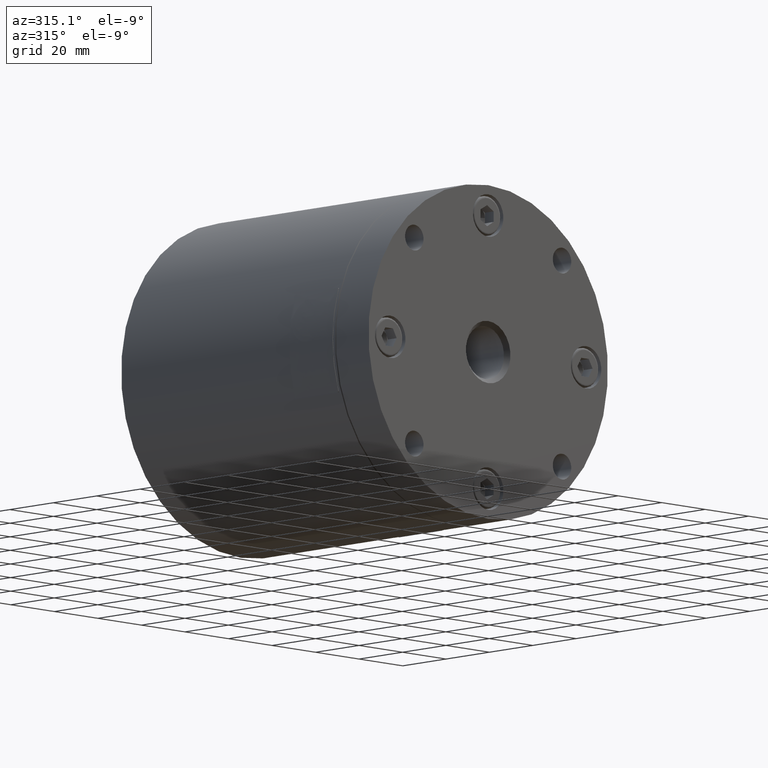
[diagram: clean part render]
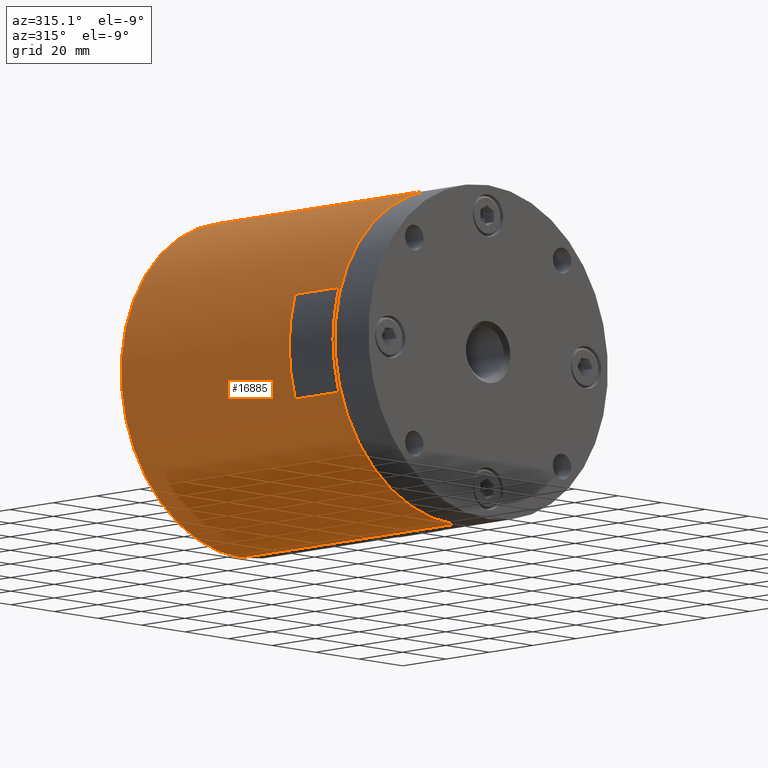
[diagram: same view with one face highlighted and labeled with its STEP entity id]
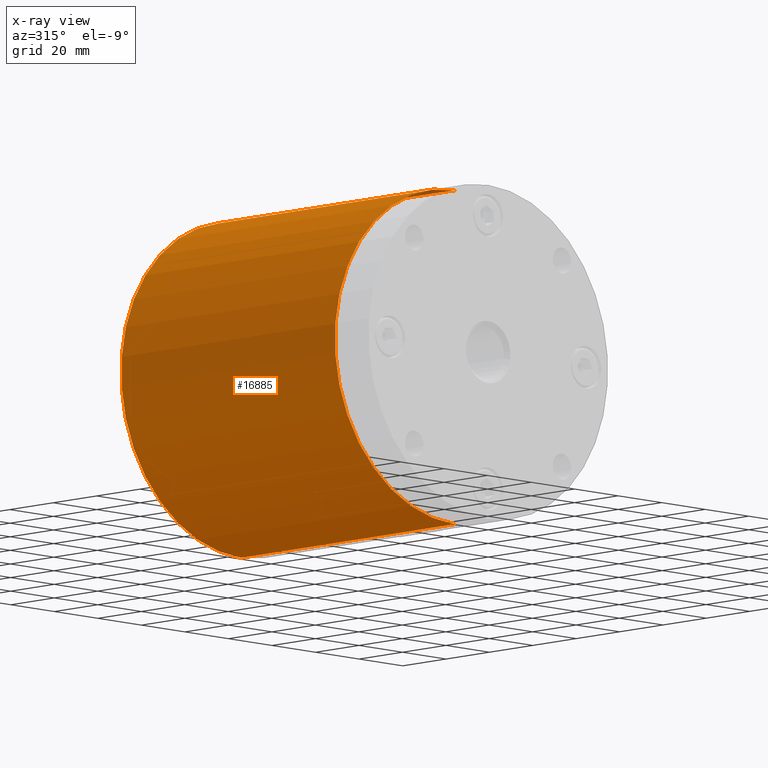
[diagram: x-ray of the same camera — body ghosted, the highlighted face saturated]
A machine part, auxiliary view. The second image highlights one B-rep face of the part: STEP entity #16885.
The next image is the same camera in x-ray: the body ghosted, the highlighted face saturated — about 0% of this face is hidden behind the body in this view.
In plain terms, the highlighted cylindrical surface (partial cylindrical patch) has radius 55 mm, axis along (0, -1, 0).
Its self-contained STEP definition (entity closure, byte-faithful):
#585 = CYLINDRICAL_SURFACE ( 'NONE', #29428, 55.00000000000000000 ) ;
#1635 = CARTESIAN_POINT ( 'NONE',  ( 0.0000000000000000000, 114.0000000000000000, 0.0000000000000000000 ) ) ;
#3151 = CARTESIAN_POINT ( 'NONE',  ( 6.735557395310442600E-015, 15.50000000000000000, 55.00000000000000000 ) ) ;
#5273 = CARTESIAN_POINT ( 'NONE',  ( 0.0000000000000000000, 115.0000000000000000, 0.0000000000000000000 ) ) ;
#5336 = VECTOR ( 'NONE', #22642, 1000.000000000000000 ) ;
#5360 = EDGE_LOOP ( 'NONE', ( #20655, #7234, #18458, #30440 ) ) ;
#5817 = DIRECTION ( 'NONE',  ( -0.0000000000000000000, 1.000000000000000000, -0.0000000000000000000 ) ) ;
#7006 = VERTEX_POINT ( 'NONE', #3151 ) ;
#7234 = ORIENTED_EDGE ( 'NONE', *, *, #15658, .T. ) ;
#7534 = DIRECTION ( 'NONE',  ( 0.0000000000000000000, -1.000000000000000000, 0.0000000000000000000 ) ) ;
#8351 = DIRECTION ( 'NONE',  ( 0.0000000000000000000, 0.0000000000000000000, -1.000000000000000000 ) ) ;
#8658 = EDGE_CURVE ( 'NONE', #31551, #35431, #31756, .T. ) ;
#8785 = DIRECTION ( 'NONE',  ( 0.0000000000000000000, -1.000000000000000000, 0.0000000000000000000 ) ) ;
#8921 = DIRECTION ( 'NONE',  ( 0.0000000000000000000, 0.0000000000000000000, -1.000000000000000000 ) ) ;
#10541 = CIRCLE ( 'NONE', #31418, 55.00000000000000000 ) ;
#12358 = CARTESIAN_POINT ( 'NONE',  ( 0.0000000000000000000, 15.50000000000000000, -55.00000000000000000 ) ) ;
#12908 = DIRECTION ( 'NONE',  ( 0.0000000000000000000, 0.0000000000000000000, -1.000000000000000000 ) ) ;
#13014 = CIRCLE ( 'NONE', #32320, 55.00000000000000000 ) ;
#13974 = DIRECTION ( 'NONE',  ( 0.0000000000000000000, -1.000000000000000000, 0.0000000000000000000 ) ) ;
#14282 = CARTESIAN_POINT ( 'NONE',  ( 0.0000000000000000000, 114.0000000000000000, -55.00000000000000000 ) ) ;
#15658 = EDGE_CURVE ( 'NONE', #18012, #31551, #13014, .T. ) ;
#16510 = EDGE_CURVE ( 'NONE', #18012, #7006, #25224, .T. ) ;
#16885 = ADVANCED_FACE ( 'NONE', ( #30213 ), #585, .T. ) ;
#18012 = VERTEX_POINT ( 'NONE', #22669 ) ;
#18458 = ORIENTED_EDGE ( 'NONE', *, *, #8658, .T. ) ;
#20655 = ORIENTED_EDGE ( 'NONE', *, *, #16510, .F. ) ;
#20872 = EDGE_CURVE ( 'NONE', #35431, #7006, #10541, .T. ) ;
#22642 = DIRECTION ( 'NONE',  ( 0.0000000000000000000, -1.000000000000000000, 0.0000000000000000000 ) ) ;
#22669 = CARTESIAN_POINT ( 'NONE',  ( 6.735557395310442600E-015, 114.0000000000000000, 55.00000000000000000 ) ) ;
#23018 = CARTESIAN_POINT ( 'NONE',  ( 0.0000000000000000000, 115.0000000000000000, -55.00000000000000000 ) ) ;
#25224 = LINE ( 'NONE', #31805, #29330 ) ;
#29330 = VECTOR ( 'NONE', #8785, 1000.000000000000000 ) ;
#29428 = AXIS2_PLACEMENT_3D ( 'NONE', #5273, #13974, #8351 ) ;
#30213 = FACE_OUTER_BOUND ( 'NONE', #5360, .T. ) ;
#30440 = ORIENTED_EDGE ( 'NONE', *, *, #20872, .T. ) ;
#31418 = AXIS2_PLACEMENT_3D ( 'NONE', #31918, #5817, #8921 ) ;
#31551 = VERTEX_POINT ( 'NONE', #14282 ) ;
#31756 = LINE ( 'NONE', #23018, #5336 ) ;
#31805 = CARTESIAN_POINT ( 'NONE',  ( 6.735557395310442600E-015, 115.0000000000000000, 55.00000000000000000 ) ) ;
#31918 = CARTESIAN_POINT ( 'NONE',  ( 0.0000000000000000000, 15.50000000000000000, 0.0000000000000000000 ) ) ;
#32320 = AXIS2_PLACEMENT_3D ( 'NONE', #1635, #7534, #12908 ) ;
#35431 = VERTEX_POINT ( 'NONE', #12358 ) ;